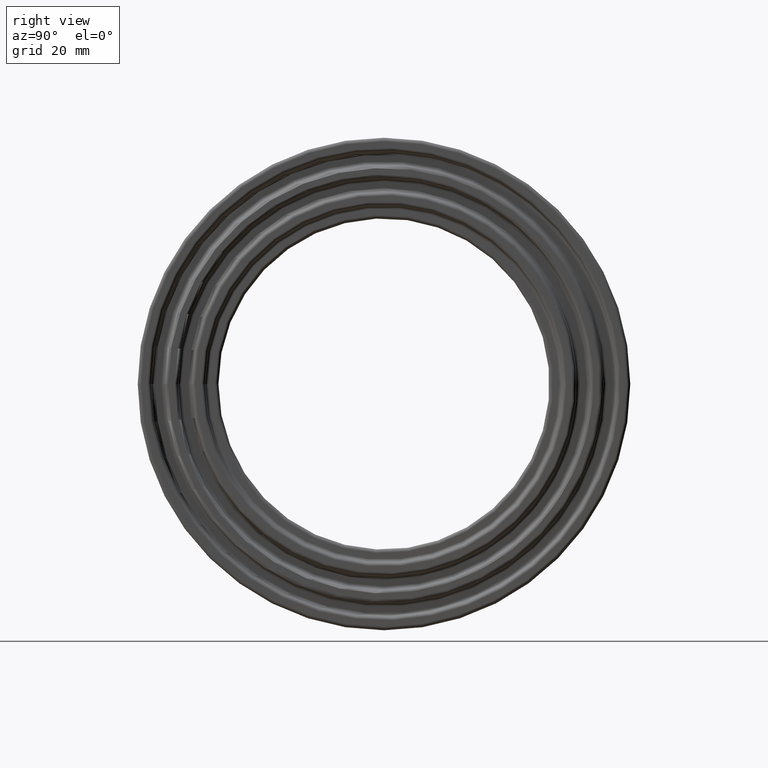
[diagram: clean part render]
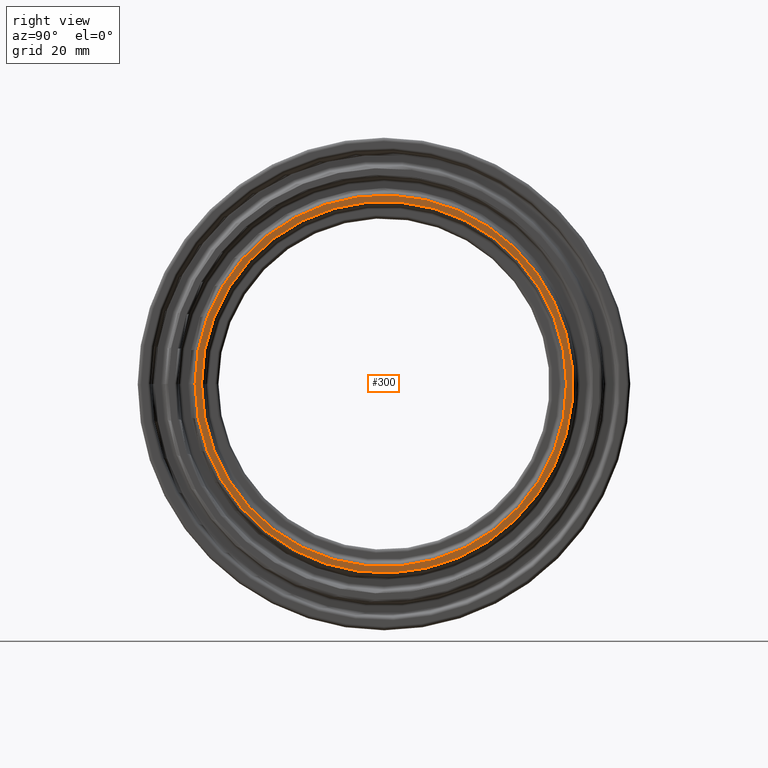
[diagram: same view with one face highlighted and labeled with its STEP entity id]
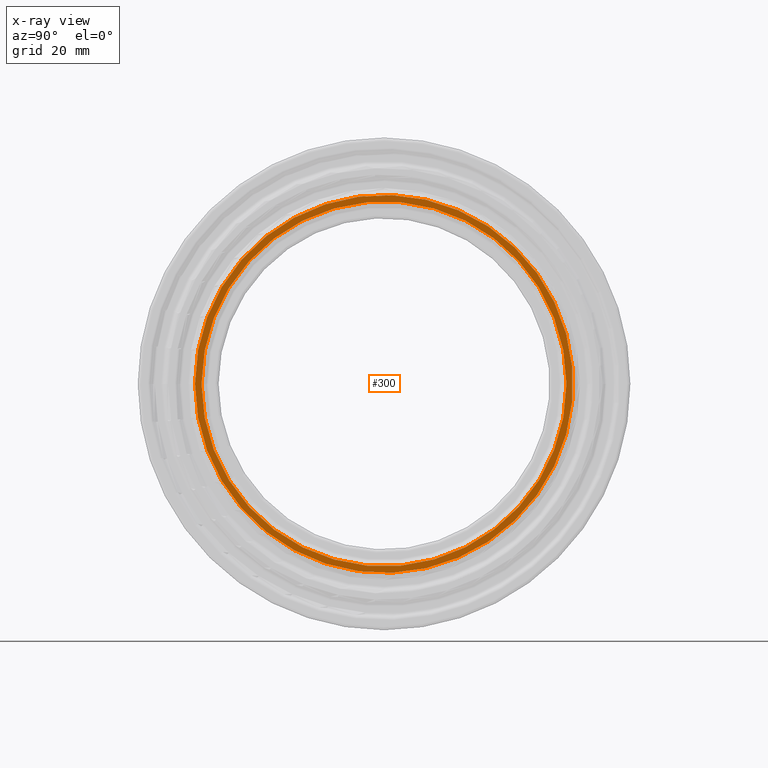
[diagram: x-ray of the same camera — body ghosted, the highlighted face saturated]
A machine part, right view. The second image highlights one B-rep face of the part: STEP entity #300.
The next image is the same camera in x-ray: the body ghosted, the highlighted face saturated — about 0% of this face is hidden behind the body in this view.
In plain terms, the highlighted planar face has unit normal (1, 0, 0).
Its self-contained STEP definition (entity closure, byte-faithful):
#20=PLANE('',#336);
#33=FACE_BOUND('',#95,.T.);
#61=FACE_OUTER_BOUND('',#94,.T.);
#94=EDGE_LOOP('',(#234));
#95=EDGE_LOOP('',(#235));
#145=CIRCLE('',#335,39.2708333333333);
#146=CIRCLE('',#337,40.6666666666667);
#173=VERTEX_POINT('',#511);
#174=VERTEX_POINT('',#514);
#201=EDGE_CURVE('',#173,#173,#145,.T.);
#202=EDGE_CURVE('',#174,#174,#146,.T.);
#234=ORIENTED_EDGE('',*,*,#202,.F.);
#235=ORIENTED_EDGE('',*,*,#201,.F.);
#300=ADVANCED_FACE('',(#61,#33),#20,.T.);
#335=AXIS2_PLACEMENT_3D('',#512,#403,#404);
#336=AXIS2_PLACEMENT_3D('',#513,#405,#406);
#337=AXIS2_PLACEMENT_3D('',#515,#407,#408);
#403=DIRECTION('center_axis',(1.,0.,0.));
#404=DIRECTION('ref_axis',(0.,1.,6.12323399573677E-17));
#405=DIRECTION('center_axis',(1.,0.,0.));
#406=DIRECTION('ref_axis',(0.,0.,-1.));
#407=DIRECTION('center_axis',(-1.,0.,0.));
#408=DIRECTION('ref_axis',(0.,1.,6.12323399573677E-17));
#511=CARTESIAN_POINT('',(48.,-39.2708333333333,-7.21393505122738E-15));
#512=CARTESIAN_POINT('Origin',(48.,0.,0.));
#513=CARTESIAN_POINT('Origin',(48.,-41.4166666666667,0.));
#514=CARTESIAN_POINT('',(48.,-40.6666666666667,2.49011515826629E-15));
#515=CARTESIAN_POINT('Origin',(48.,0.,0.));